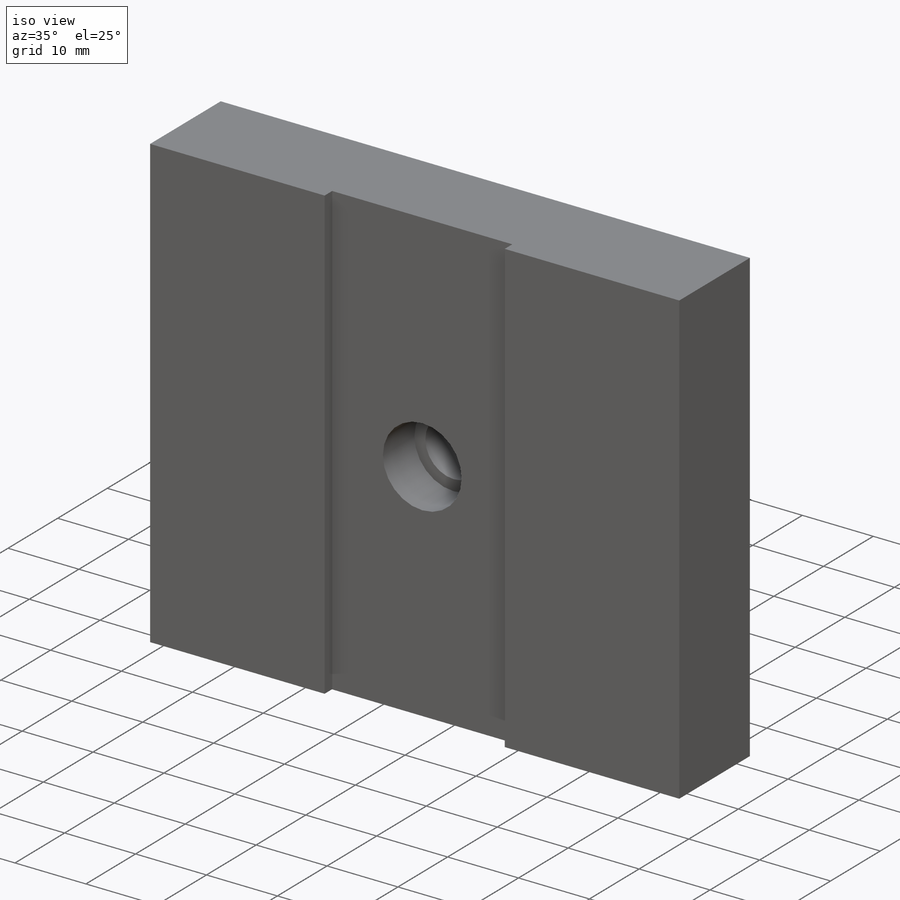
[diagram: iso view]
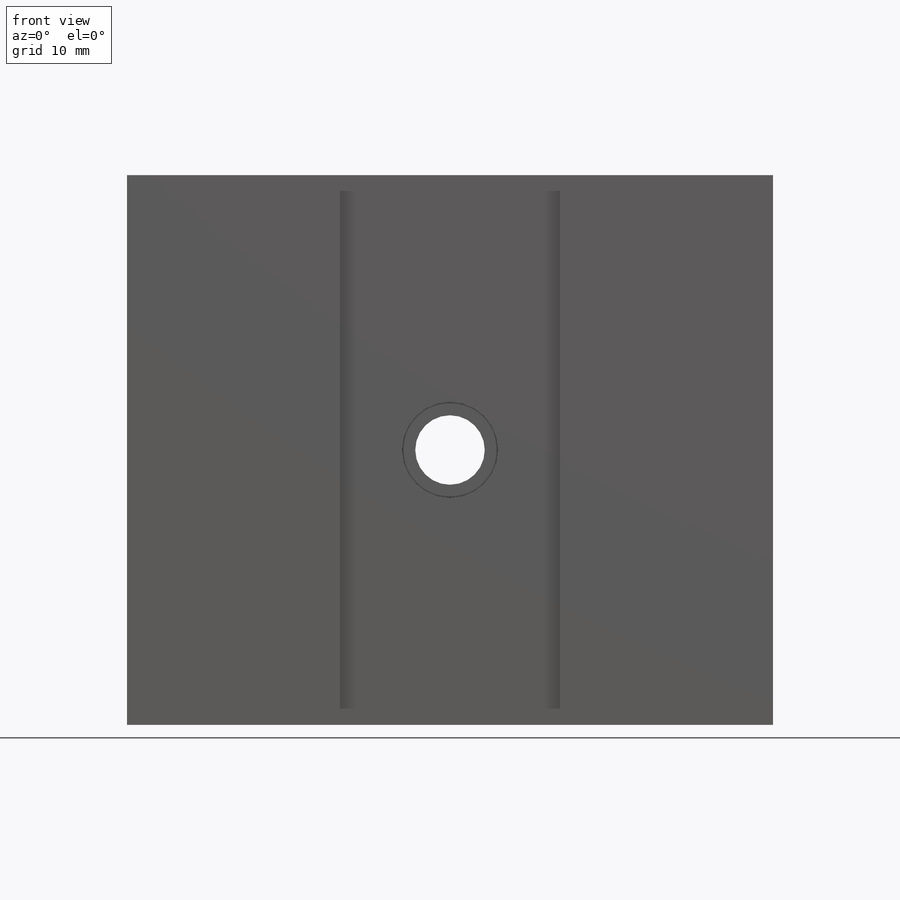
[diagram: front view]
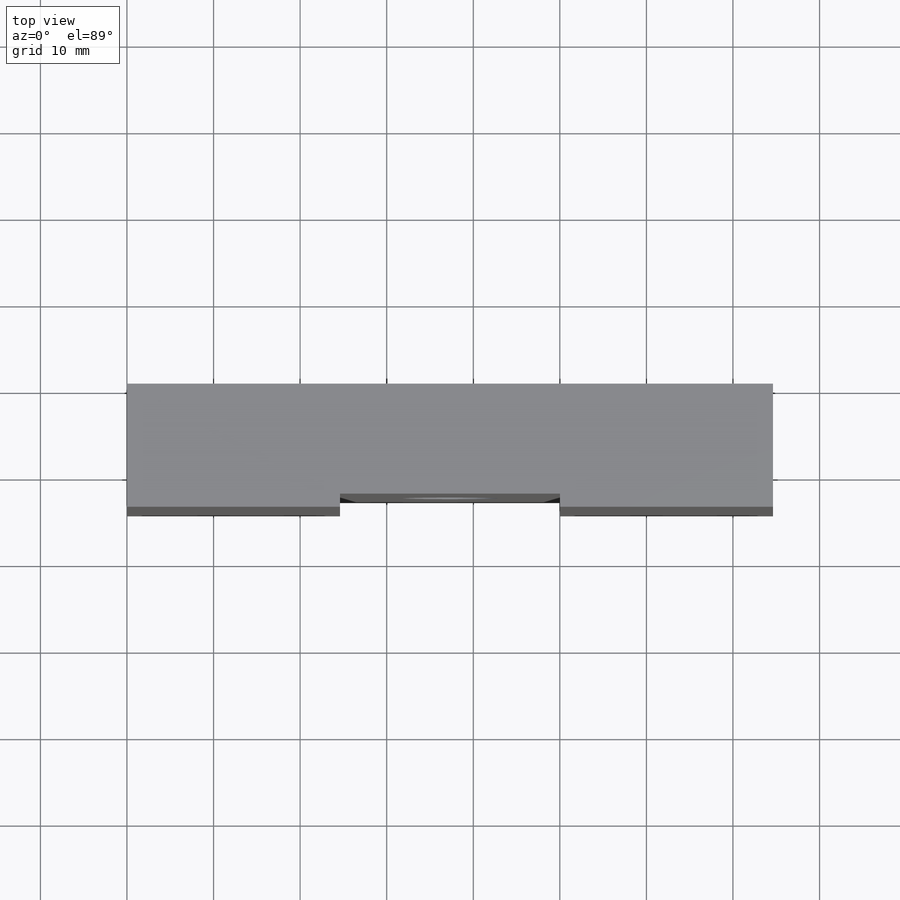
[diagram: top view]
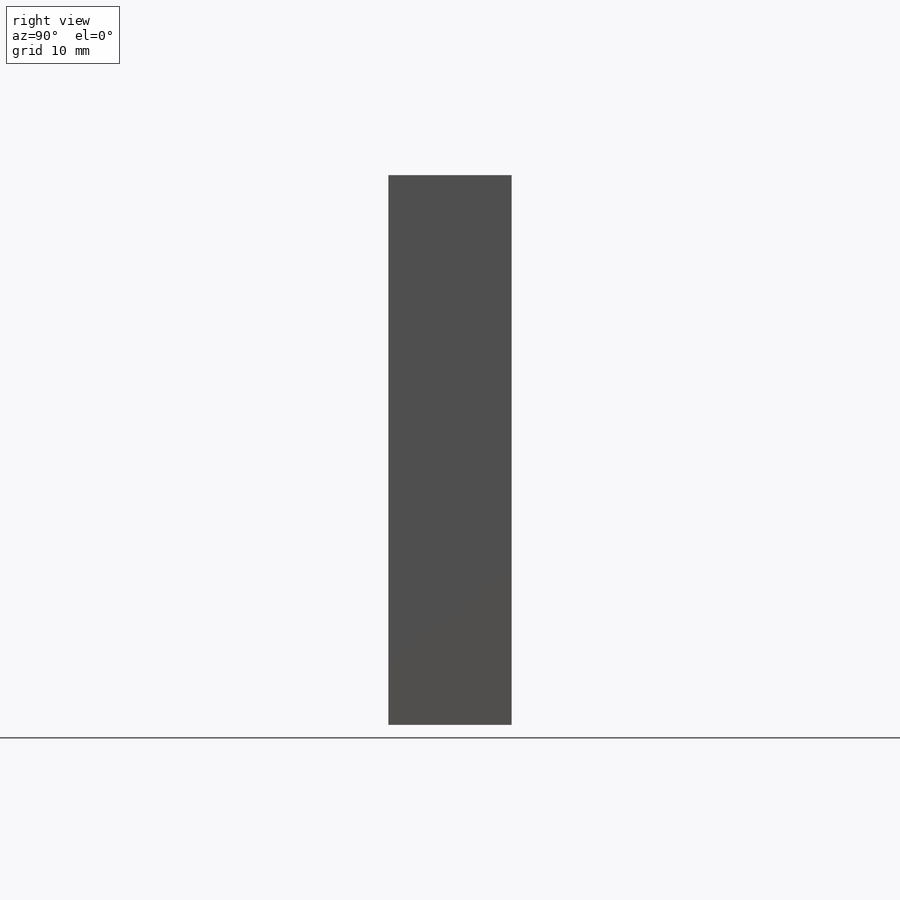
[diagram: right view]
SOLIDWORKS PART (.sldprt)
format: sldprt  version: not decoded by parser v0  size: 183,808 bytes
history: native  units: mm
features: sketch x5, cut_extrude x2, material x1, extrude x1, hole x1 (+16 scaffold rows collapsed)
feature tree (26):
  scaffold x16  (default folders/planes/origin — collapsed)
  material  "6061-T6 Al"
  sketch  "Sketch1"  dims[c1.D5=12.7mm c1.D1=76.2mm c1.D2=74.6252mm c2.D1=63.5mm c2.D3=25.4mm c2.D4=38.1mm]
  extrude  "Boss-Extrude1"  Depth=14.224mm
  hole  "CBORE for 1/4 Socket Head Cap Screw1"  Diameter=8.0264mm Depth=14.224mm
  sketch  "Sketch6"  dims[D1=38.1mm D2=19.05mm]
  sketch  "Sketch5"  dims[hole-wizard template sketch: 41 standard entries collapsed; hole parameters kept: c12.Thru Hole Dia.=8.0264mm c12.Thru Hole Depth=14.224mm c12.C'Bore Dia.=11.0998mm c12.C'Bore Depth=7.874mm]
  sketch  "Sketch9"  dims[D1=25.4mm]
  cut_extrude  "Cut-Extrude1"  Depth=1.524mm
  sketch  "Sketch10"  dims[D1=22.225mm]
  cut_extrude  "Cut-Extrude2"  Depth=1.397mm
decode coverage: 9 of 9 modeling features carry decoded parameters
note: ~ marks probable driven/reference dimensions
note: suppression state not decoded; provenance and decode notes live in map.json
